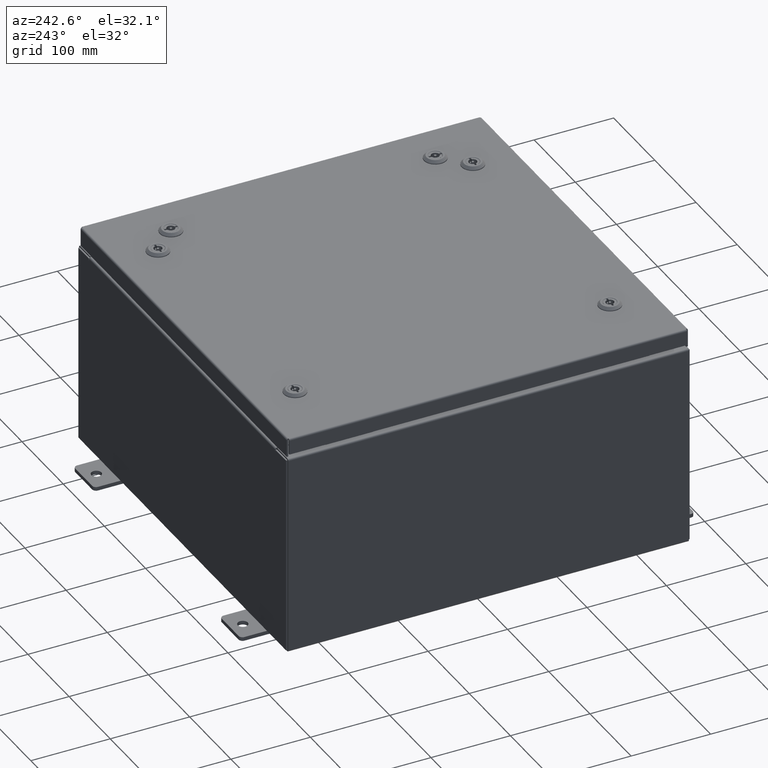
[diagram: clean part render]
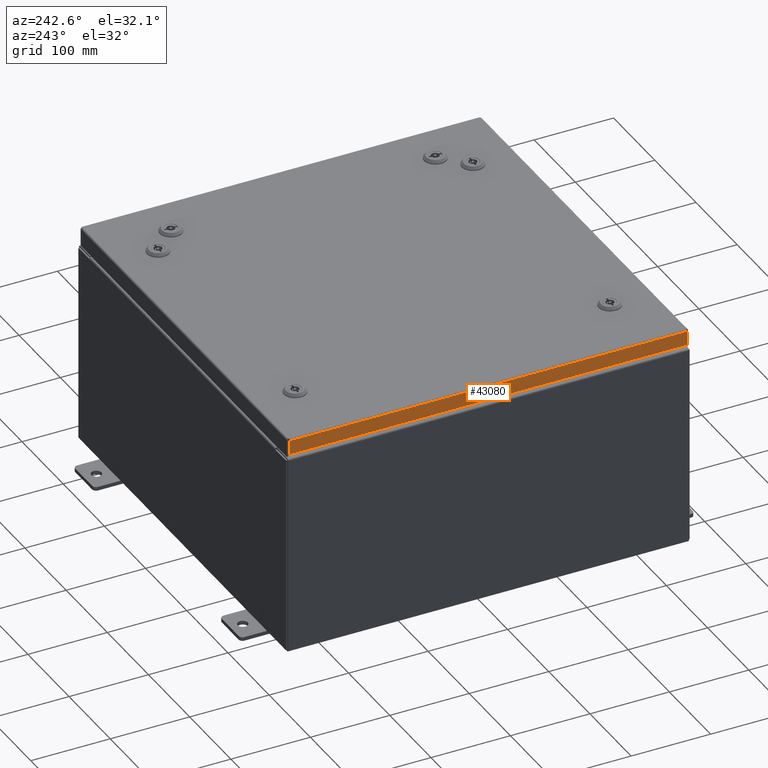
[diagram: same view with one face highlighted and labeled with its STEP entity id]
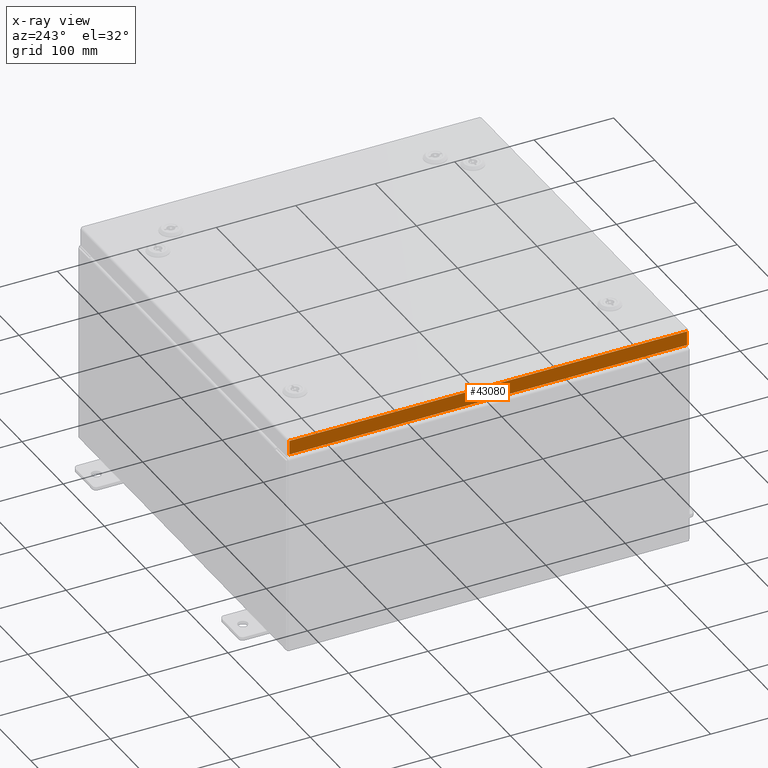
[diagram: x-ray of the same camera — body ghosted, the highlighted face saturated]
A machine part, auxiliary view. The second image highlights one B-rep face of the part: STEP entity #43080.
The next image is the same camera in x-ray: the body ghosted, the highlighted face saturated — about 0% of this face is hidden behind the body in this view.
In plain terms, the highlighted planar face has unit normal (1, 0, -0).
Its self-contained STEP definition (entity closure, byte-faithful):
#3457 = LINE ( 'NONE', #33674, #13365 ) ;
#4582 = DIRECTION ( 'NONE',  ( -1.099611771034672100E-016, 1.000000000000000000, 1.237063242414006300E-016 ) ) ;
#4816 = LINE ( 'NONE', #31899, #27871 ) ;
#6155 = VECTOR ( 'NONE', #9980, 39.37007874015748100 ) ;
#8775 = CARTESIAN_POINT ( 'NONE',  ( -9.937500000000005300, 9.848657864376271200, -0.7949999999999972600 ) ) ;
#9295 = DIRECTION ( 'NONE',  ( -6.068244883885633100E-015, 0.0000000000000000000, -1.000000000000000000 ) ) ;
#9980 = DIRECTION ( 'NONE',  ( 1.099611771034679600E-016, -1.000000000000000000, -4.554220009055657300E-045 ) ) ;
#11442 = EDGE_CURVE ( 'NONE', #32939, #31333, #4816, .T. ) ;
#13365 = VECTOR ( 'NONE', #4582, 39.37007874015748100 ) ;
#14675 = CARTESIAN_POINT ( 'NONE',  ( -9.937500000000000000, -9.937500000000001800, -0.08769999999999982000 ) ) ;
#16459 = EDGE_CURVE ( 'NONE', #32939, #38859, #58303, .T. ) ;
#23836 = DIRECTION ( 'NONE',  ( 1.000000000000000000, 1.099611771034679500E-016, -6.068244883885633100E-015 ) ) ;
#23964 = CARTESIAN_POINT ( 'NONE',  ( -9.937500000000001800, 9.848657864376269400, -0.08769999999999982000 ) ) ;
#26909 = CARTESIAN_POINT ( 'NONE',  ( -9.937500000000000000, -9.848657864376273000, -0.08769999999999977800 ) ) ;
#27871 = VECTOR ( 'NONE', #41583, 39.37007874015748100 ) ;
#28369 = CARTESIAN_POINT ( 'NONE',  ( -9.937500000000000000, -9.848657864376271200, -0.07469999999999954500 ) ) ;
#31333 = VERTEX_POINT ( 'NONE', #8775 ) ;
#31489 = FACE_OUTER_BOUND ( 'NONE', #54671, .T. ) ;
#31899 = CARTESIAN_POINT ( 'NONE',  ( -9.937500000000000000, 9.848657864376265900, 1.293368074818658800E-013 ) ) ;
#32469 = ORIENTED_EDGE ( 'NONE', *, *, #35366, .F. ) ;
#32939 = VERTEX_POINT ( 'NONE', #23964 ) ;
#33674 = CARTESIAN_POINT ( 'NONE',  ( -9.937500000000003600, -9.937500000000001800, -0.7949999999999997100 ) ) ;
#33688 = CARTESIAN_POINT ( 'NONE',  ( -9.937500000000000000, -1.092739197465712800E-015, 6.056399718962504900E-014 ) ) ;
#35366 = EDGE_CURVE ( 'NONE', #43701, #31333, #3457, .T. ) ;
#38624 = PLANE ( 'NONE',  #58431 ) ;
#38859 = VERTEX_POINT ( 'NONE', #26909 ) ;
#40307 = VECTOR ( 'NONE', #42805, 39.37007874015748100 ) ;
#41583 = DIRECTION ( 'NONE',  ( -6.068244883885633100E-015, 6.982962677686265900E-015, -1.000000000000000000 ) ) ;
#42805 = DIRECTION ( 'NONE',  ( -6.068244883885633100E-015, 6.982962677686265900E-015, -1.000000000000000000 ) ) ;
#43080 = ADVANCED_FACE ( 'NONE', ( #31489 ), #38624, .F. ) ;
#43701 = VERTEX_POINT ( 'NONE', #53610 ) ;
#48714 = ORIENTED_EDGE ( 'NONE', *, *, #50808, .F. ) ;
#50808 = EDGE_CURVE ( 'NONE', #38859, #43701, #53394, .T. ) ;
#51610 = ORIENTED_EDGE ( 'NONE', *, *, #16459, .F. ) ;
#53394 = LINE ( 'NONE', #28369, #40307 ) ;
#53610 = CARTESIAN_POINT ( 'NONE',  ( -9.937500000000003600, -9.848657864376265900, -0.7949999999999997100 ) ) ;
#54671 = EDGE_LOOP ( 'NONE', ( #51610, #56282, #32469, #48714 ) ) ;
#56282 = ORIENTED_EDGE ( 'NONE', *, *, #11442, .T. ) ;
#58303 = LINE ( 'NONE', #14675, #6155 ) ;
#58431 = AXIS2_PLACEMENT_3D ( 'NONE', #33688, #23836, #9295 ) ;